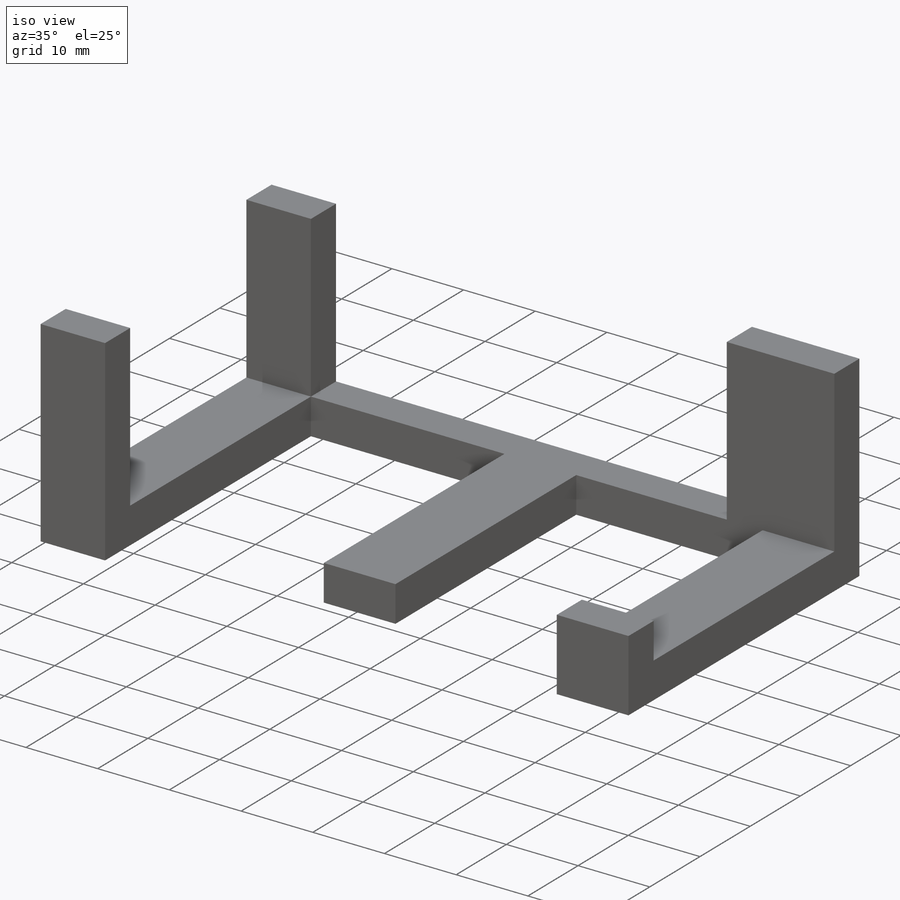
[diagram: iso view]
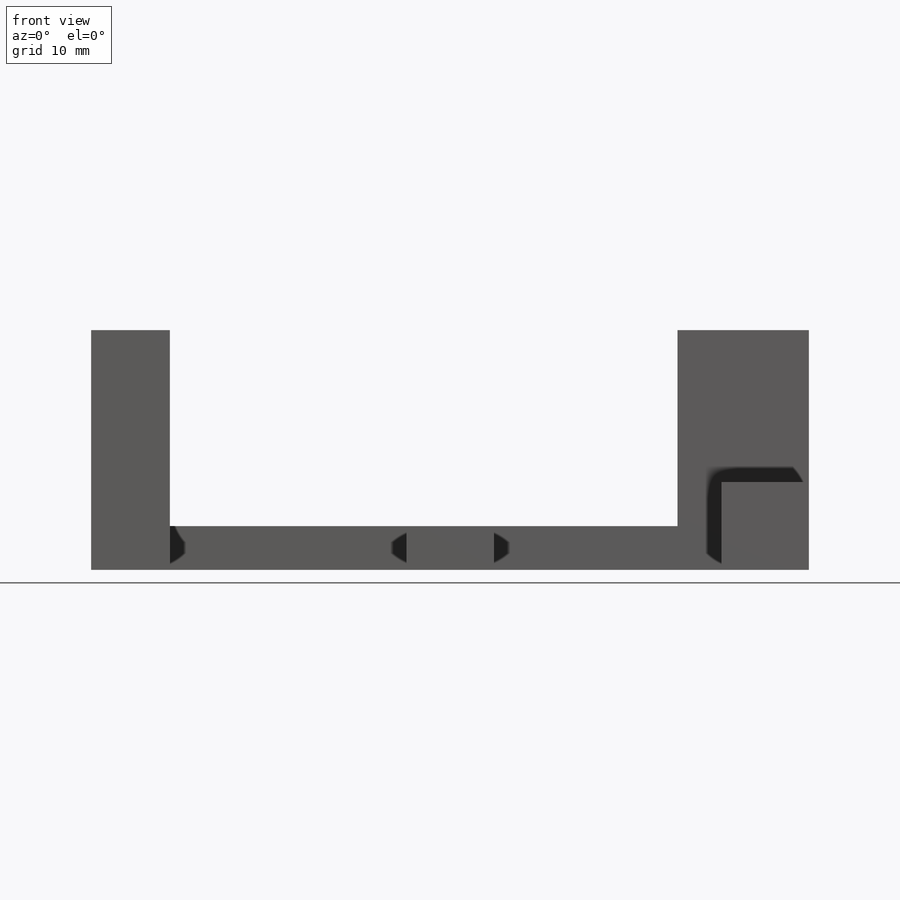
[diagram: front view]
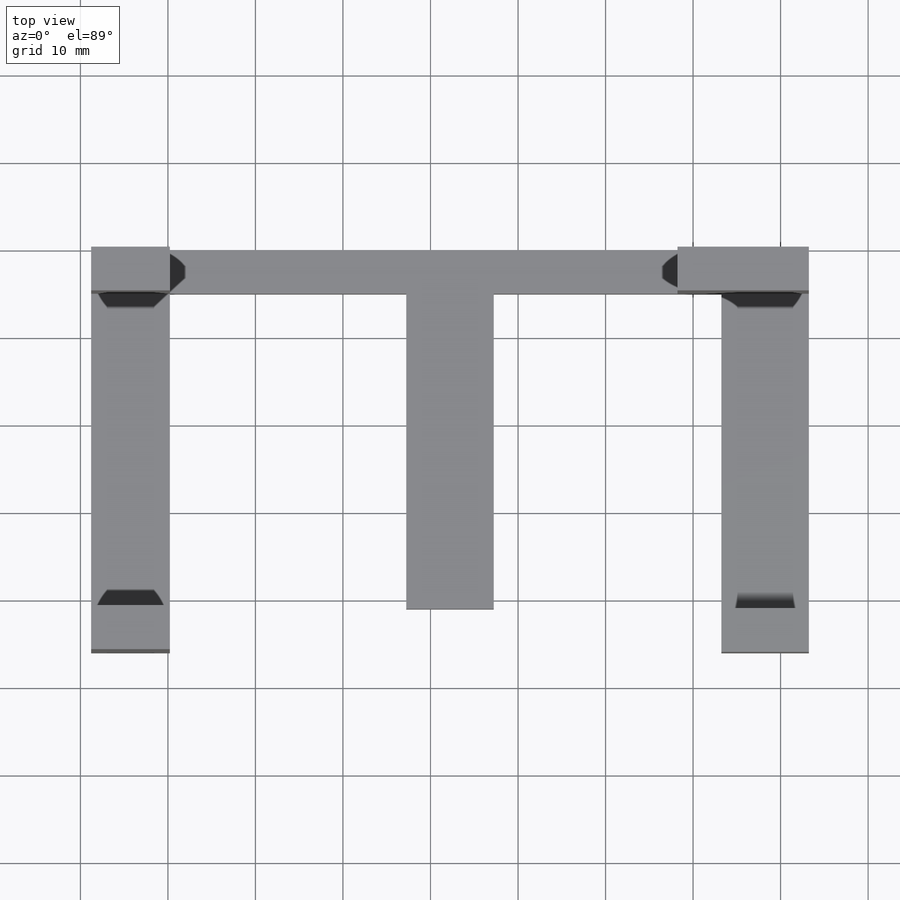
[diagram: top view]
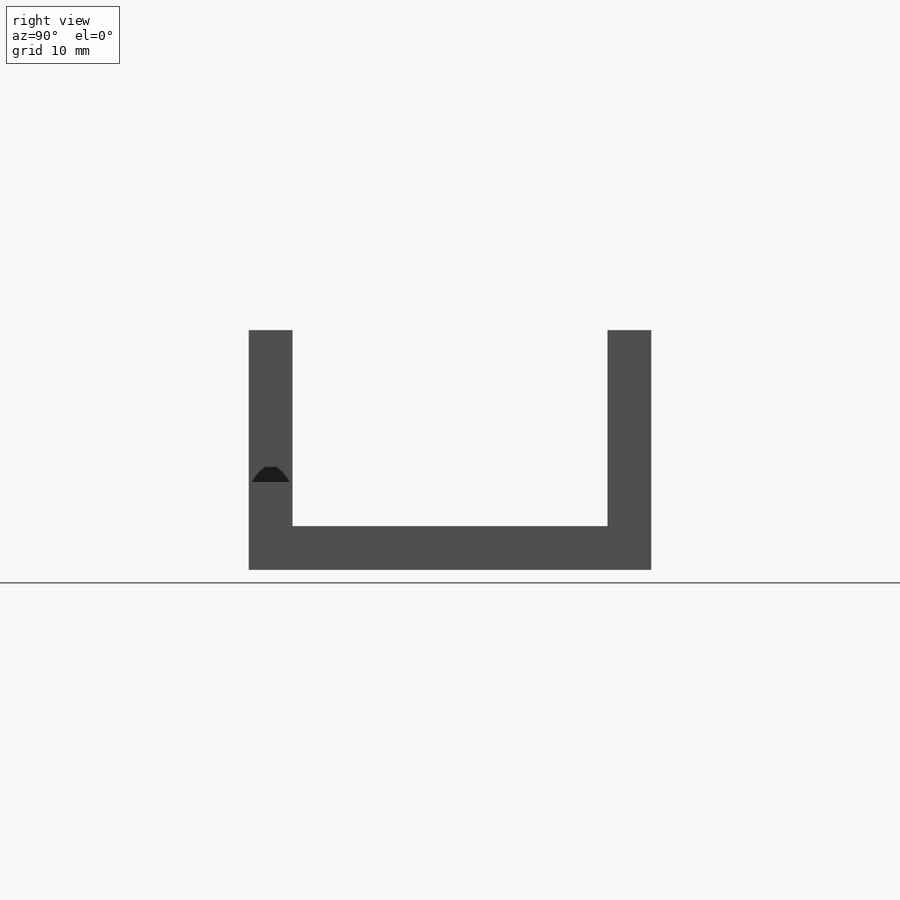
[diagram: right view]
SOLIDWORKS PART (.sldprt)
format: sldprt  version: not decoded by parser v0  size: 237,056 bytes
history: native  units: mm
features: sketch x4, extrude x4, plane x3, material x1 (+9 scaffold rows collapsed)
feature tree (21):
  scaffold x9  (default folders/planes/origin — collapsed)
  material  "Material <sin especificar>"
  plane  "Alzado"
  plane  "Planta"
  plane  "Vista lateral"
  sketch  "Croquis1"  dims[D1=5.0mm]
  extrude  "Saliente-Extruir1"  Depth=5mm
  sketch  "Croquis2"  dims[D1=3.5mm]
  extrude  "Saliente-Extruir2"  Depth=22.4mm
  sketch  "Croquis3"  dims[D1=5.0mm]
  extrude  "Saliente-Extruir3"  Depth=36mm
  sketch  "Croquis4"  dims[D1=10.0mm]
  extrude  "Saliente-Extruir4"  Depth=5mm
decode coverage: 8 of 8 modeling features carry decoded parameters
note: suppression state not decoded; provenance and decode notes live in map.json
